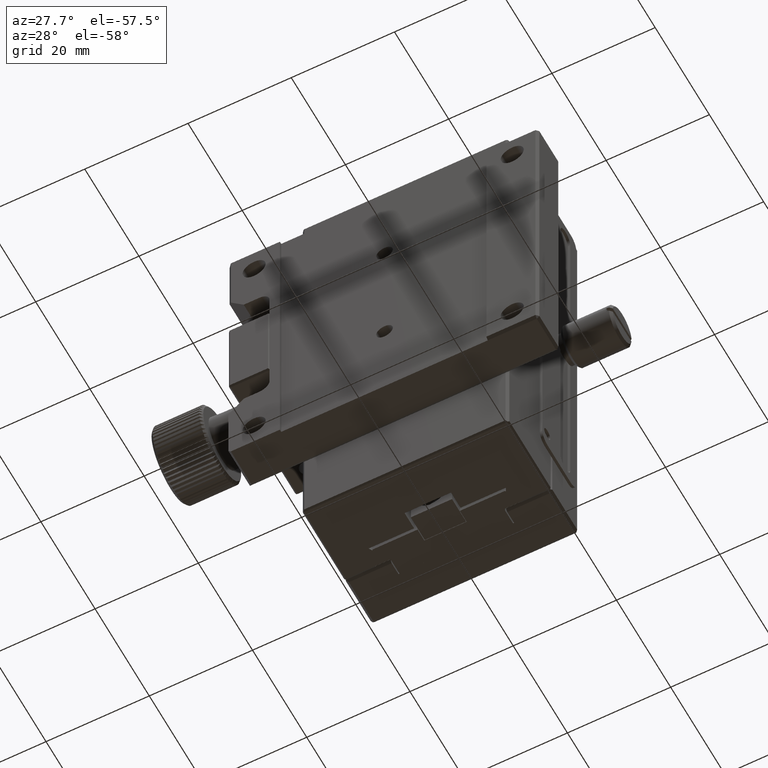
[diagram: clean part render]
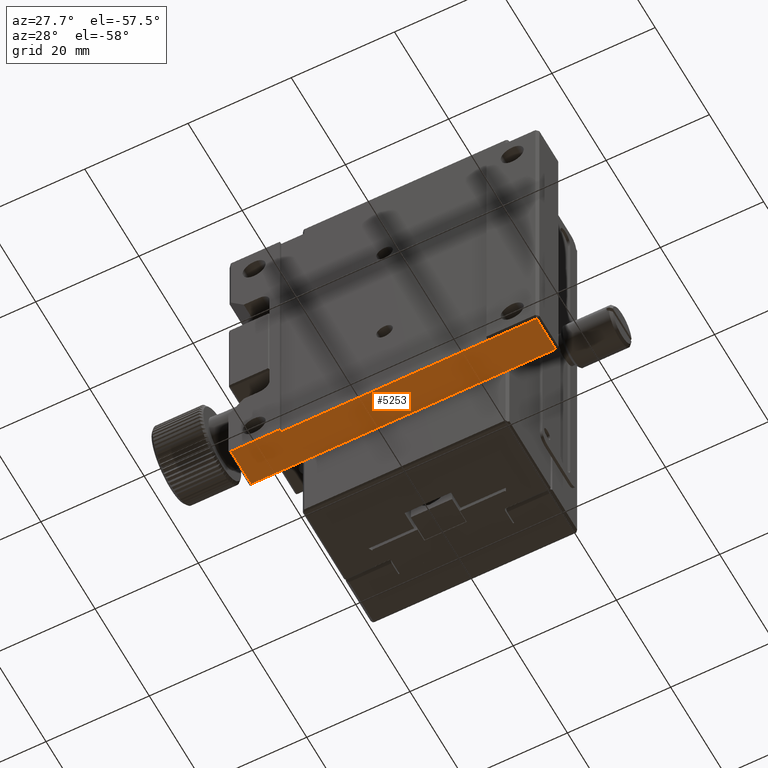
[diagram: same view with one face highlighted and labeled with its STEP entity id]
A machine part, auxiliary view. The second image highlights one B-rep face of the part: STEP entity #5253.
In plain terms, the highlighted planar face has unit normal (0, 0, 1).
Its self-contained STEP definition (entity closure, byte-faithful):
#587 = EDGE_CURVE ( 'NONE', #2487, #795, #9840, .T. ) ;
#795 = VERTEX_POINT ( 'NONE', #11100 ) ;
#1211 = AXIS2_PLACEMENT_3D ( 'NONE', #15564, #1699, #8120 ) ;
#1699 = DIRECTION ( 'NONE',  ( 0.000000000000000000, 0.000000000000000000, 1.000000000000000000 ) ) ;
#1970 = CARTESIAN_POINT ( 'NONE',  ( 0.000000000000000000, -8.000000000000000000, -30.00000000000000000 ) ) ;
#2487 = VERTEX_POINT ( 'NONE', #6516 ) ;
#2943 = CARTESIAN_POINT ( 'NONE',  ( -29.50000000000000711, -8.000000000000001776, -30.00000000000000000 ) ) ;
#3082 = VECTOR ( 'NONE', #12033, 1000.000000000000000 ) ;
#3538 = DIRECTION ( 'NONE',  ( -1.000000000000000000, -0.000000000000000000, 0.000000000000000000 ) ) ;
#3586 = VECTOR ( 'NONE', #11862, 1000.000000000000000 ) ;
#3685 = ORIENTED_EDGE ( 'NONE', *, *, #13708, .T. ) ;
#4076 = LINE ( 'NONE', #4402, #3586 ) ;
#4276 = EDGE_LOOP ( 'NONE', ( #6982, #10603, #5210, #14374, #8030, #12711, #3685 ) ) ;
#4402 = CARTESIAN_POINT ( 'NONE',  ( 30.00000000000000000, -7.500000000000000000, -30.00000000000000000 ) ) ;
#4406 = VECTOR ( 'NONE', #11110, 1000.000000000000000 ) ;
#5210 = ORIENTED_EDGE ( 'NONE', *, *, #5316, .F. ) ;
#5253 = ADVANCED_FACE ( 'NONE', ( #10574 ), #6645, .F. ) ;
#5316 = EDGE_CURVE ( 'NONE', #9835, #11264, #16109, .T. ) ;
#5378 = CARTESIAN_POINT ( 'NONE',  ( -29.50000000000001421, -0.4999999999999970024, -30.00000000000000000 ) ) ;
#6039 = VECTOR ( 'NONE', #3538, 1000.000000000000000 ) ;
#6495 = EDGE_CURVE ( 'NONE', #10663, #9835, #4076, .T. ) ;
#6516 = CARTESIAN_POINT ( 'NONE',  ( -20.00000000000000355, -8.000000000000000000, -30.00000000000000000 ) ) ;
#6645 = PLANE ( 'NONE',  #1211 ) ;
#6865 = VERTEX_POINT ( 'NONE', #5378 ) ;
#6982 = ORIENTED_EDGE ( 'NONE', *, *, #14311, .T. ) ;
#7419 = CARTESIAN_POINT ( 'NONE',  ( -29.50000000000000355, 0.000000000000000000, -30.00000000000000000 ) ) ;
#7654 = VERTEX_POINT ( 'NONE', #2943 ) ;
#8030 = ORIENTED_EDGE ( 'NONE', *, *, #14044, .F. ) ;
#8120 = DIRECTION ( 'NONE',  ( 1.000000000000000000, 0.000000000000000000, -0.000000000000000000 ) ) ;
#9384 = EDGE_CURVE ( 'NONE', #11264, #6865, #14931, .T. ) ;
#9678 = CARTESIAN_POINT ( 'NONE',  ( 20.00000000000000000, -7.500000000000000000, -30.00000000000000000 ) ) ;
#9835 = VERTEX_POINT ( 'NONE', #10889 ) ;
#9840 = LINE ( 'NONE', #10326, #14283 ) ;
#9970 = VECTOR ( 'NONE', #13537, 1000.000000000000000 ) ;
#10326 = CARTESIAN_POINT ( 'NONE',  ( -20.00000000000000355, 0.000000000000000000, -30.00000000000000000 ) ) ;
#10574 = FACE_OUTER_BOUND ( 'NONE', #4276, .T. ) ;
#10603 = ORIENTED_EDGE ( 'NONE', *, *, #9384, .F. ) ;
#10663 = VERTEX_POINT ( 'NONE', #9678 ) ;
#10889 = CARTESIAN_POINT ( 'NONE',  ( 29.50000000000000355, -7.500000000000000888, -30.00000000000000000 ) ) ;
#11016 = LINE ( 'NONE', #7419, #13567 ) ;
#11092 = DIRECTION ( 'NONE',  ( -0.000000000000000000, 1.000000000000000000, 0.000000000000000000 ) ) ;
#11100 = CARTESIAN_POINT ( 'NONE',  ( -20.00000000000000355, -7.500000000000000000, -30.00000000000000000 ) ) ;
#11110 = DIRECTION ( 'NONE',  ( 1.000000000000000000, 0.000000000000000000, -0.000000000000000000 ) ) ;
#11264 = VERTEX_POINT ( 'NONE', #11435 ) ;
#11271 = CARTESIAN_POINT ( 'NONE',  ( 29.50000000000000355, 0.000000000000000000, -30.00000000000000000 ) ) ;
#11435 = CARTESIAN_POINT ( 'NONE',  ( 29.50000000000001066, -0.4999999999999978351, -30.00000000000000000 ) ) ;
#11619 = DIRECTION ( 'NONE',  ( -0.000000000000000000, 1.000000000000000000, 0.000000000000000000 ) ) ;
#11862 = DIRECTION ( 'NONE',  ( 1.000000000000000000, 0.000000000000000000, -0.000000000000000000 ) ) ;
#12033 = DIRECTION ( 'NONE',  ( -0.000000000000000000, 1.000000000000000000, 0.000000000000000000 ) ) ;
#12465 = CARTESIAN_POINT ( 'NONE',  ( 0.000000000000000000, -0.4999999999999978351, -30.00000000000000000 ) ) ;
#12711 = ORIENTED_EDGE ( 'NONE', *, *, #587, .F. ) ;
#13537 = DIRECTION ( 'NONE',  ( -1.000000000000000000, 0.000000000000000000, -0.000000000000000000 ) ) ;
#13567 = VECTOR ( 'NONE', #11092, 1000.000000000000000 ) ;
#13708 = EDGE_CURVE ( 'NONE', #2487, #7654, #14765, .T. ) ;
#14044 = EDGE_CURVE ( 'NONE', #795, #10663, #16047, .T. ) ;
#14283 = VECTOR ( 'NONE', #11619, 1000.000000000000000 ) ;
#14311 = EDGE_CURVE ( 'NONE', #7654, #6865, #11016, .T. ) ;
#14374 = ORIENTED_EDGE ( 'NONE', *, *, #6495, .F. ) ;
#14765 = LINE ( 'NONE', #1970, #6039 ) ;
#14879 = CARTESIAN_POINT ( 'NONE',  ( 30.00000000000000000, -7.500000000000000000, -30.00000000000000000 ) ) ;
#14931 = LINE ( 'NONE', #12465, #9970 ) ;
#15564 = CARTESIAN_POINT ( 'NONE',  ( 30.00000000000000000, 0.000000000000000000, -30.00000000000000000 ) ) ;
#16047 = LINE ( 'NONE', #14879, #4406 ) ;
#16109 = LINE ( 'NONE', #11271, #3082 ) ;